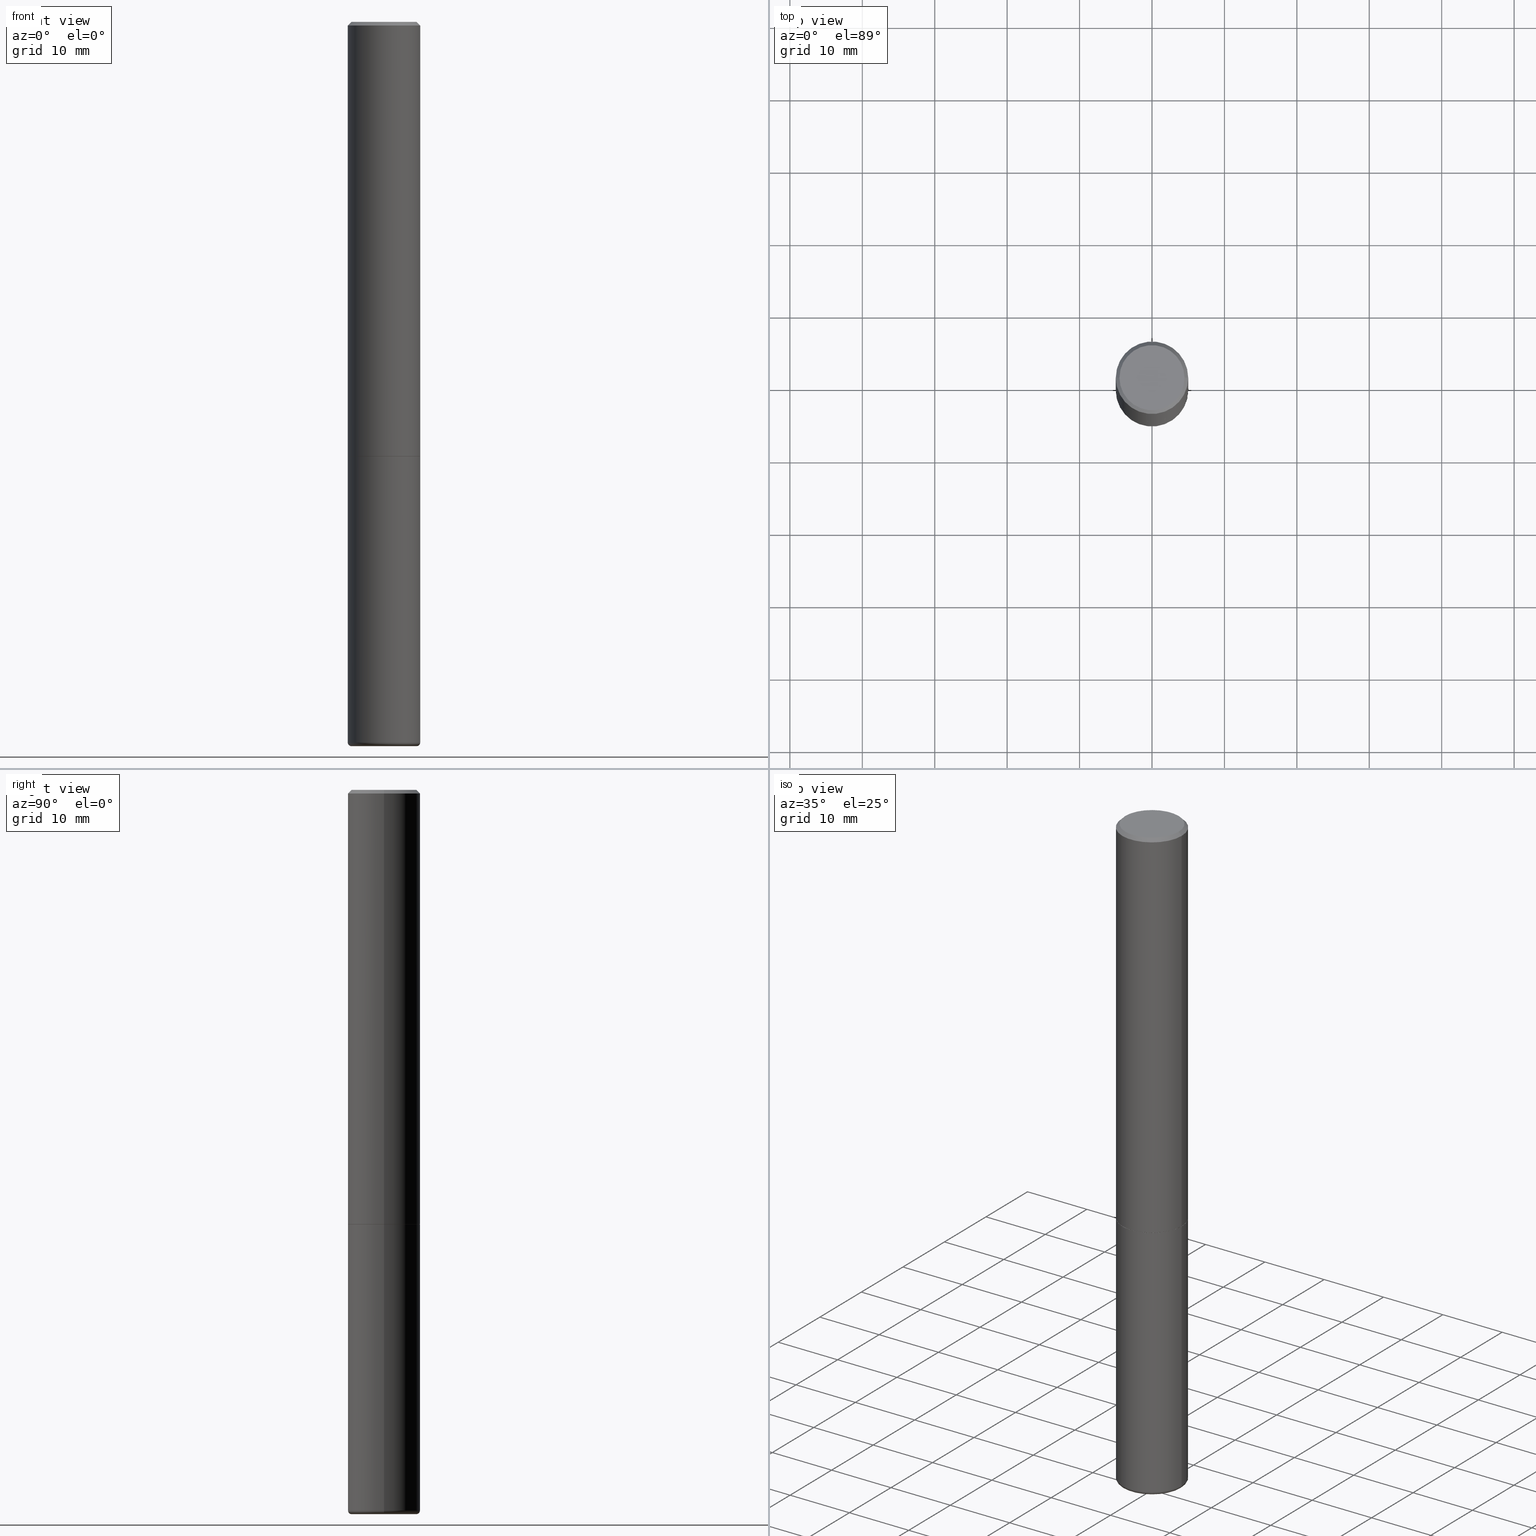
[diagram: canonical four-view strip — front | top / right | iso, engineering-drawing reading convention]
A machine part, canonical four-view strip (front | top / right | iso — engineering-drawing reading convention). The complete STEP part file that produces these views, byte-faithful:
ISO-10303-21;
HEADER;
FILE_DESCRIPTION (( 'STEP AP203' ),
    '1' );
FILE_NAME ('74424.STEP',
    '2024-03-06T15:12:57',
    ( '' ),
    ( '' ),
    'SwSTEP 2.0',
    'SolidWorks 2023',
    '' );
FILE_SCHEMA (( 'CONFIG_CONTROL_DESIGN' ));
ENDSEC;

DATA;
#1 = ADVANCED_FACE ( 'NONE', ( #188 ), #218, .T. ) ;
#2 = ORIENTED_EDGE ( 'NONE', *, *, #209, .T. ) ;
#3 = APPROVAL_DATE_TIME ( #37, #187 ) ;
#4 = ORIENTED_EDGE ( 'NONE', *, *, #355, .F. ) ;
#5 = CALENDAR_DATE ( 2024, 6, 3 ) ;
#6 = CC_DESIGN_APPROVAL ( #264, ( #50 ) ) ;
#7 = CARTESIAN_POINT ( 'NONE',  ( 4.890937612370283668E-31, -6.982962677686305168E-17, -0.02000000000000004205 ) ) ;
#8 = PERSON_AND_ORGANIZATION ( #388, #212 ) ;
#9 = DIRECTION ( 'NONE',  ( -0.7071067811865462405, 2.468850131082243650E-15, -0.7071067811865486830 ) ) ;
#10 = DIRECTION ( 'NONE',  ( 1.000000000000000000, -6.982962677686266711E-15, 4.876176775795935793E-29 ) ) ;
#11 = DIRECTION ( 'NONE',  ( 1.000000000000000000, -6.982962677686268288E-15, 0.000000000000000000 ) ) ;
#12 = DIRECTION ( 'NONE',  ( 1.000000000000000000, -6.982962677686266711E-15, 4.876176775795935793E-29 ) ) ;
#13 = AXIS2_PLACEMENT_3D ( 'NONE', #405, #48, #102 ) ;
#14 = CC_DESIGN_PERSON_AND_ORGANIZATION_ASSIGNMENT ( #185, #322, ( #310 ) ) ;
#15 = DIRECTION ( 'NONE',  ( 1.000000000000000000, -6.982962677686268288E-15, 0.000000000000000000 ) ) ;
#16 = CARTESIAN_POINT ( 'NONE',  ( 9.579634954469036932E-29, -1.367717984865025539E-14, -3.917300000000000448 ) ) ;
#17 = AXIS2_PLACEMENT_3D ( 'NONE', #104, #303, #12 ) ;
#18 = EDGE_LOOP ( 'NONE', ( #289, #384 ) ) ;
#19 = DIRECTION ( 'NONE',  ( 1.000000000000000000, -6.982962677686270655E-15, 0.000000000000000000 ) ) ;
#20 = CIRCLE ( 'NONE', #70, 0.1968500000000000527 ) ;
#21 = EDGE_LOOP ( 'NONE', ( #52, #375, #279, #351 ) ) ;
#22 = UNCERTAINTY_MEASURE_WITH_UNIT (LENGTH_MEASURE( 1.000000000000000082E-05 ), #414, 'distance_accuracy_value', 'NONE');
#23 = EDGE_CURVE ( 'NONE', #383, #181, #86, .T. ) ;
#24 = FACE_OUTER_BOUND ( 'NONE', #154, .T. ) ;
#25 = DIRECTION ( 'NONE',  ( 0.000000000000000000, 0.000000000000000000, 1.000000000000000000 ) ) ;
#26 = DIRECTION ( 'NONE',  ( 1.000000000000000000, -6.982962677686266711E-15, 4.870572768024644056E-29 ) ) ;
#27 = APPLICATION_PROTOCOL_DEFINITION ( 'international standard', 'config_control_design', 1994, #261 ) ;
#28 = ORIENTED_EDGE ( 'NONE', *, *, #53, .F. ) ;
#29 = CIRCLE ( 'NONE', #34, 0.01969999999999989468 ) ;
#30 = PRODUCT_DEFINITION_FORMATION_WITH_SPECIFIED_SOURCE ( 'ANY', '', #310, .NOT_KNOWN. ) ;
#31 = ORIENTED_EDGE ( 'NONE', *, *, #311, .T. ) ;
#32 = CARTESIAN_POINT ( 'NONE',  ( 9.579634954469036932E-29, -1.367717984865025539E-14, -3.917300000000000448 ) ) ;
#33 = DIRECTION ( 'NONE',  ( 1.000000000000000000, -6.982962677686265922E-15, 4.876176775795935793E-29 ) ) ;
#34 = AXIS2_PLACEMENT_3D ( 'NONE', #159, #40, #397 ) ;
#35 = LINE ( 'NONE', #298, #395 ) ;
#36 = CARTESIAN_POINT ( 'NONE',  ( -0.1768499999999998407, 1.269851762937247450E-15, 2.219626494852126227E-16 ) ) ;
#37 = DATE_AND_TIME ( #120, #362 ) ;
#38 = DIRECTION ( 'NONE',  ( -2.445468806185136877E-29, 3.491481338843145188E-15, 1.000000000000000000 ) ) ;
#39 = DIRECTION ( 'NONE',  ( 1.000000000000000000, -6.982962677686266711E-15, 0.000000000000000000 ) ) ;
#40 = DIRECTION ( 'NONE',  ( -6.982962677686266711E-15, -1.000000000000000000, 3.491481338843145583E-15 ) ) ;
#41 = DIRECTION ( 'NONE',  ( -2.445468806185136597E-29, 3.491481338843145583E-15, 1.000000000000000000 ) ) ;
#42 = CONICAL_SURFACE ( 'NONE', #295, 0.1968500000000000527, 0.7853981633974466137 ) ;
#43 = DIRECTION ( 'NONE',  ( 0.7071067811865462405, -7.319954787623251312E-15, -0.7071067811865486830 ) ) ;
#44 = CARTESIAN_POINT ( 'NONE',  ( -0.1968499999999999417, -1.227847647330649996E-14, -3.917300000000000448 ) ) ;
#45 = VERTEX_POINT ( 'NONE', #228 ) ;
#46 = TOROIDAL_SURFACE ( 'NONE', #146, 0.1771500000000000019, 0.01969999999999987733 ) ;
#47 = ORIENTED_EDGE ( 'NONE', *, *, #23, .F. ) ;
#48 = DIRECTION ( 'NONE',  ( 2.438088387897960049E-29, -3.491481338843145188E-15, -1.000000000000000000 ) ) ;
#49 = ORIENTED_EDGE ( 'NONE', *, *, #313, .F. ) ;
#50 = PRODUCT_DEFINITION ( 'UNKNOWN', '', #30, #400 ) ;
#51 = MANIFOLD_SOLID_BREP ( 'Body-Move/Copy2[1]', #394 ) ;
#52 = ORIENTED_EDGE ( 'NONE', *, *, #94, .F. ) ;
#53 = EDGE_CURVE ( 'NONE', #356, #417, #270, .T. ) ;
#54 = AXIS2_PLACEMENT_3D ( 'NONE', #68, #363, #15 ) ;
#55 = ORIENTED_EDGE ( 'NONE', *, *, #399, .T. ) ;
#56 = CARTESIAN_POINT ( 'NONE',  ( -5.428027354543142984E-45, 7.749784485978325769E-31, 2.219626494852213988E-16 ) ) ;
#57 = DIRECTION ( 'NONE',  ( 1.000000000000000000, 0.000000000000000000, 0.000000000000000000 ) ) ;
#58 = ORIENTED_EDGE ( 'NONE', *, *, #89, .T. ) ;
#59 = EDGE_CURVE ( 'NONE', #117, #230, #314, .T. ) ;
#60 = ORIENTED_EDGE ( 'NONE', *, *, #245, .F. ) ;
#61 = PERSON_AND_ORGANIZATION ( #388, #212 ) ;
#62 = CARTESIAN_POINT ( 'NONE',  ( 5.776686413970529753E-29, -8.247577218615278049E-15, -2.362199999999999633 ) ) ;
#63 = EDGE_LOOP ( 'NONE', ( #282, #349, #257, #76 ) ) ;
#64 = COORDINATED_UNIVERSAL_TIME_OFFSET ( 5, 0, .BEHIND. ) ;
#65 = CARTESIAN_POINT ( 'NONE',  ( 0.1968500000000000527, -1.420318657638189516E-15, -0.02000000000000004205 ) ) ;
#66 = DIRECTION ( 'NONE',  ( -2.445468806185136597E-29, 3.491481338843145583E-15, 1.000000000000000000 ) ) ;
#67 = DIRECTION ( 'NONE',  ( 1.000000000000000000, -6.982962677686262766E-15, 0.000000000000000000 ) ) ;
#68 = CARTESIAN_POINT ( 'NONE',  ( 5.776686413970529753E-29, -8.247577218615278049E-15, -2.362199999999999633 ) ) ;
#69 = APPROVAL_STATUS ( 'not_yet_approved' ) ;
#70 = AXIS2_PLACEMENT_3D ( 'NONE', #7, #204, #386 ) ;
#71 = LINE ( 'NONE', #353, #186 ) ;
#72 = FACE_OUTER_BOUND ( 'NONE', #121, .T. ) ;
#73 = CARTESIAN_POINT ( 'NONE',  ( 0.1968500000000000527, -1.420318657638189516E-15, -0.02000000000000004205 ) ) ;
#74 = DIRECTION ( 'NONE',  ( -2.445468806185136597E-29, 3.491481338843145583E-15, 1.000000000000000000 ) ) ;
#75 = DIRECTION ( 'NONE',  ( -1.000000000000000000, 6.982962677686265922E-15, -4.876176775795935793E-29 ) ) ;
#76 = ORIENTED_EDGE ( 'NONE', *, *, #213, .T. ) ;
#77 = FACE_OUTER_BOUND ( 'NONE', #413, .T. ) ;
#78 = CARTESIAN_POINT ( 'NONE',  ( 5.776686413970529753E-29, -8.247577218615278049E-15, -2.362199999999999633 ) ) ;
#79 = CARTESIAN_POINT ( 'NONE',  ( 9.627810689950883669E-29, -1.374596203102546341E-14, -3.937000000000000277 ) ) ;
#80 = EDGE_LOOP ( 'NONE', ( #249, #224, #119, #325 ) ) ;
#81 = AXIS2_PLACEMENT_3D ( 'NONE', #56, #189, #26 ) ;
#82 = AXIS2_PLACEMENT_3D ( 'NONE', #16, #168, #208 ) ;
#83 = CC_DESIGN_PERSON_AND_ORGANIZATION_ASSIGNMENT ( #288, #330, ( #30 ) ) ;
#84 = ADVANCED_FACE ( 'NONE', ( #24 ), #411, .T. ) ;
#85 = DIRECTION ( 'NONE',  ( 1.000000000000000000, -6.982962677686269866E-15, 0.000000000000000000 ) ) ;
#86 = CIRCLE ( 'NONE', #163, 0.1771500000000000574 ) ;
#87 = CIRCLE ( 'NONE', #415, 0.1958499999999999963 ) ;
#88 = DIRECTION ( 'NONE',  ( 1.000000000000000000, -6.982962677686266711E-15, 4.876176775795935793E-29 ) ) ;
#89 = EDGE_CURVE ( 'NONE', #230, #117, #401, .T. ) ;
#90 = DIRECTION ( 'NONE',  ( -1.000000000000000000, 6.982962677686266711E-15, 0.000000000000000000 ) ) ;
#91 = DIRECTION ( 'NONE',  ( -2.445468806185136597E-29, 3.491481338843145583E-15, 1.000000000000000000 ) ) ;
#92 = ORIENTED_EDGE ( 'NONE', *, *, #370, .F. ) ;
#93 = AXIS2_PLACEMENT_3D ( 'NONE', #412, #25, #57 ) ;
#94 = EDGE_CURVE ( 'NONE', #181, #417, #277, .T. ) ;
#95 = FACE_OUTER_BOUND ( 'NONE', #111, .T. ) ;
#96 = PERSON_AND_ORGANIZATION ( #388, #212 ) ;
#97 = CARTESIAN_POINT ( 'NONE',  ( 0.1768499999999998407, -1.316798864272041549E-15, 2.219626494852302982E-16 ) ) ;
#98 = DATE_AND_TIME ( #390, #243 ) ;
#99 = CARTESIAN_POINT ( 'NONE',  ( 5.776686413970529753E-29, -8.247577218615278049E-15, -2.362199999999999633 ) ) ;
#100 = LINE ( 'NONE', #327, #155 ) ;
#101 = CARTESIAN_POINT ( 'NONE',  ( 4.890937612370283668E-31, -6.982962677686305168E-17, -0.02000000000000004205 ) ) ;
#102 = DIRECTION ( 'NONE',  ( -1.000000000000000000, 6.982962677686265922E-15, -4.876176775795935793E-29 ) ) ;
#103 = ADVANCED_FACE ( 'NONE', ( #396 ), #240, .F. ) ;
#104 = CARTESIAN_POINT ( 'NONE',  ( 0.000000000000000000, 0.000000000000000000, 0.000000000000000000 ) ) ;
#105 =( LENGTH_UNIT ( ) NAMED_UNIT ( * ) SI_UNIT ( $, .METRE. ) );
#106 = CIRCLE ( 'NONE', #278, 0.1968499999999999694 ) ;
#107 = PRODUCT_RELATED_PRODUCT_CATEGORY ( 'detail', '', ( #310 ) ) ;
#108 = DIRECTION ( 'NONE',  ( -2.445468806185136877E-29, 3.491481338843145188E-15, 1.000000000000000000 ) ) ;
#109 = FACE_OUTER_BOUND ( 'NONE', #280, .T. ) ;
#110 = ADVANCED_FACE ( 'NONE', ( #365 ), #234, .T. ) ;
#111 = EDGE_LOOP ( 'NONE', ( #60, #55, #157, #408 ) ) ;
#112 = AXIS2_PLACEMENT_3D ( 'NONE', #78, #215, #144 ) ;
#113 = EDGE_LOOP ( 'NONE', ( #183, #153, #312, #343 ) ) ;
#114 = ORIENTED_EDGE ( 'NONE', *, *, #399, .F. ) ;
#115 = CARTESIAN_POINT ( 'NONE',  ( 0.000000000000000000, 0.000000000000000000, 0.000000000000000000 ) ) ;
#116 = VECTOR ( 'NONE', #43, 39.37007874015748854 ) ;
#117 = VERTEX_POINT ( 'NONE', #36 ) ;
#118 = PERSON_AND_ORGANIZATION ( #388, #212 ) ;
#119 = ORIENTED_EDGE ( 'NONE', *, *, #275, .F. ) ;
#120 = CALENDAR_DATE ( 2024, 6, 3 ) ;
#121 = EDGE_LOOP ( 'NONE', ( #193, #160, #184, #114 ) ) ;
#122 = DATE_AND_TIME ( #161, #367 ) ;
#123 = CC_DESIGN_PERSON_AND_ORGANIZATION_ASSIGNMENT ( #96, #166, ( #380 ) ) ;
#124 = DIRECTION ( 'NONE',  ( -2.445468806185136597E-29, 3.491481338843145583E-15, 1.000000000000000000 ) ) ;
#125 = EDGE_CURVE ( 'NONE', #230, #350, #272, .T. ) ;
#126 = VECTOR ( 'NONE', #238, 39.37007874015748143 ) ;
#127 = EDGE_LOOP ( 'NONE', ( #156, #152 ) ) ;
#128 = APPROVAL_ROLE ( '' ) ;
#129 =( GEOMETRIC_REPRESENTATION_CONTEXT ( 3 ) GLOBAL_UNCERTAINTY_ASSIGNED_CONTEXT ( ( #22 ) ) GLOBAL_UNIT_ASSIGNED_CONTEXT ( ( #414, #225, #222 ) ) REPRESENTATION_CONTEXT ( 'NONE', 'WORKASPACE' ) );
#130 = ADVANCED_FACE ( 'NONE', ( #176 ), #203, .T. ) ;
#131 = CC_DESIGN_APPROVAL ( #210, ( #30 ) ) ;
#132 = FACE_OUTER_BOUND ( 'NONE', #21, .T. ) ;
#133 = CARTESIAN_POINT ( 'NONE',  ( 0.000000000000000000, 0.000000000000000000, 0.000000000000000000 ) ) ;
#134 = CARTESIAN_POINT ( 'NONE',  ( 9.627810689950883669E-29, -1.374596203102546341E-14, -3.937000000000000277 ) ) ;
#135 = CARTESIAN_POINT ( 'NONE',  ( 0.1968500000000000250, -9.622173421717819657E-15, -2.362199999999999633 ) ) ;
#136 = APPLICATION_CONTEXT ( 'configuration controlled 3d designs of mechanical parts and assemblies' ) ;
#137 = DIRECTION ( 'NONE',  ( -2.445468806185136597E-29, 3.491481338843145583E-15, 1.000000000000000000 ) ) ;
#138 = DIRECTION ( 'NONE',  ( -1.000000000000000000, 6.982962677686265922E-15, -4.876176775795935793E-29 ) ) ;
#139 = AXIS2_PLACEMENT_3D ( 'NONE', #207, #172, #141 ) ;
#140 = AXIS2_PLACEMENT_3D ( 'NONE', #342, #308, #262 ) ;
#141 = DIRECTION ( 'NONE',  ( -1.000000000000000000, 7.105427357600965571E-15, 0.000000000000000000 ) ) ;
#142 = CARTESIAN_POINT ( 'NONE',  ( 0.1771500000000000574, -1.498299386937758739E-14, -3.937000000000000277 ) ) ;
#143 = ADVANCED_FACE ( 'NONE', ( #72 ), #247, .T. ) ;
#144 = DIRECTION ( 'NONE',  ( 1.000000000000000000, -6.982962677686268288E-15, 0.000000000000000000 ) ) ;
#145 = AXIS2_PLACEMENT_3D ( 'NONE', #32, #292, #85 ) ;
#146 = AXIS2_PLACEMENT_3D ( 'NONE', #167, #137, #231 ) ;
#147 = ORIENTED_EDGE ( 'NONE', *, *, #209, .F. ) ;
#148 = ADVANCED_FACE ( 'NONE', ( #360 ), #151, .T. ) ;
#149 = VERTEX_POINT ( 'NONE', #135 ) ;
#150 = APPLICATION_PROTOCOL_DEFINITION ( 'international standard', 'config_control_design', 1994, #136 ) ;
#151 = CONICAL_SURFACE ( 'NONE', #174, 0.1958499999999999963, 0.7853981633975507526 ) ;
#152 = ORIENTED_EDGE ( 'NONE', *, *, #313, .T. ) ;
#153 = ORIENTED_EDGE ( 'NONE', *, *, #125, .T. ) ;
#154 = EDGE_LOOP ( 'NONE', ( #2, #347, #406, #4 ) ) ;
#155 = VECTOR ( 'NONE', #358, 39.37007874015748143 ) ;
#156 = ORIENTED_EDGE ( 'NONE', *, *, #275, .T. ) ;
#157 = ORIENTED_EDGE ( 'NONE', *, *, #355, .T. ) ;
#158 = COORDINATED_UNIVERSAL_TIME_OFFSET ( 5, 0, .BEHIND. ) ;
#159 = CARTESIAN_POINT ( 'NONE',  ( 0.1771500000000000019, -1.491421168700237936E-14, -3.917300000000000448 ) ) ;
#160 = ORIENTED_EDGE ( 'NONE', *, *, #250, .T. ) ;
#161 = CALENDAR_DATE ( 2024, 6, 3 ) ;
#162 = CARTESIAN_POINT ( 'NONE',  ( -0.1958499999999999963, -6.855979270629121269E-15, -2.362199999999999633 ) ) ;
#163 = AXIS2_PLACEMENT_3D ( 'NONE', #227, #91, #329 ) ;
#164 = AXIS2_PLACEMENT_3D ( 'NONE', #133, #265, #389 ) ;
#165 = DIRECTION ( 'NONE',  ( -2.445468806185136597E-29, 3.491481338843145583E-15, 1.000000000000000000 ) ) ;
#166 = PERSON_AND_ORGANIZATION_ROLE ( 'classification_officer' ) ;
#167 = CARTESIAN_POINT ( 'NONE',  ( 9.579634954469036932E-29, -1.367717984865025539E-14, -3.917300000000000448 ) ) ;
#168 = DIRECTION ( 'NONE',  ( -2.445468806185136597E-29, 3.491481338843145583E-15, 1.000000000000000000 ) ) ;
#169 = EDGE_CURVE ( 'NONE', #350, #252, #237, .T. ) ;
#170 = CARTESIAN_POINT ( 'NONE',  ( -0.1968499999999999694, 1.398703375343756999E-15, -9.682923725166782276E-30 ) ) ;
#171 = LINE ( 'NONE', #162, #223 ) ;
#172 = DIRECTION ( 'NONE',  ( 7.105427357601001859E-15, 1.000000000000000000, -3.491481338843145583E-15 ) ) ;
#173 = CLOSED_SHELL ( 'NONE', ( #148, #84, #1, #177, #226, #143, #283, #409 ) ) ;
#174 = AXIS2_PLACEMENT_3D ( 'NONE', #99, #165, #341 ) ;
#175 = CC_DESIGN_DATE_AND_TIME_ASSIGNMENT ( #361, #301, ( #380 ) ) ;
#176 = FACE_OUTER_BOUND ( 'NONE', #377, .T. ) ;
#177 = ADVANCED_FACE ( 'NONE', ( #200 ), #42, .T. ) ;
#178 = CARTESIAN_POINT ( 'NONE',  ( 5.774240945164344150E-29, -8.244085737276433464E-15, -2.361199999999999743 ) ) ;
#179 = VECTOR ( 'NONE', #108, 39.37007874015748143 ) ;
#180 = APPROVAL_PERSON_ORGANIZATION ( #297, #210, #357 ) ;
#181 = VERTEX_POINT ( 'NONE', #306 ) ;
#182 = EDGE_CURVE ( 'NONE', #417, #315, #300, .T. ) ;
#183 = ORIENTED_EDGE ( 'NONE', *, *, #89, .F. ) ;
#184 = ORIENTED_EDGE ( 'NONE', *, *, #328, .T. ) ;
#185 = PERSON_AND_ORGANIZATION ( #388, #212 ) ;
#186 = VECTOR ( 'NONE', #38, 39.37007874015748143 ) ;
#187 = APPROVAL ( #69, 'UNSPECIFIED' ) ;
#188 = FACE_OUTER_BOUND ( 'NONE', #113, .T. ) ;
#189 = DIRECTION ( 'NONE',  ( -2.445468806185136597E-29, 3.491481338843145583E-15, 1.000000000000000000 ) ) ;
#190 = VERTEX_POINT ( 'NONE', #338 ) ;
#191 = AXIS2_PLACEMENT_3D ( 'NONE', #178, #276, #372 ) ;
#192 = LOCAL_TIME ( 10, 12, 57.00000000000000000, #268 ) ;
#193 = ORIENTED_EDGE ( 'NONE', *, *, #281, .F. ) ;
#194 = DATE_TIME_ROLE ( 'creation_date' ) ;
#195 = ADVANCED_FACE ( 'NONE', ( #274 ), #398, .T. ) ;
#196 = EDGE_CURVE ( 'NONE', #417, #356, #106, .T. ) ;
#197 = DIRECTION ( 'NONE',  ( 2.445468806185136597E-29, -3.491481338843145583E-15, -1.000000000000000000 ) ) ;
#198 = APPROVAL_DATE_TIME ( #326, #210 ) ;
#199 = DIRECTION ( 'NONE',  ( 0.7071067811866199593, -2.468850131083015945E-15, 0.7071067811864750752 ) ) ;
#200 = FACE_OUTER_BOUND ( 'NONE', #63, .T. ) ;
#201 = MANIFOLD_SOLID_BREP ( 'Body-Move/Copy2[2]', #173 ) ;
#202 = AXIS2_PLACEMENT_3D ( 'NONE', #232, #364, #138 ) ;
#203 = TOROIDAL_SURFACE ( 'NONE', #82, 0.1771500000000000019, 0.01969999999999987733 ) ;
#204 = DIRECTION ( 'NONE',  ( -2.445468806185136597E-29, 3.491481338843145583E-15, 1.000000000000000000 ) ) ;
#205 = CC_DESIGN_APPROVAL ( #187, ( #380 ) ) ;
#206 = FACE_OUTER_BOUND ( 'NONE', #18, .T. ) ;
#207 = CARTESIAN_POINT ( 'NONE',  ( -0.1771500000000000019, -1.241845339225123848E-14, -3.917300000000000448 ) ) ;
#208 = DIRECTION ( 'NONE',  ( 1.000000000000000000, -6.982962677686261977E-15, 4.883557194083110659E-29 ) ) ;
#209 = EDGE_CURVE ( 'NONE', #190, #45, #348, .T. ) ;
#210 = APPROVAL ( #293, 'UNSPECIFIED' ) ;
#211 = DIRECTION ( 'NONE',  ( 1.000000000000000000, -6.982962677686269866E-15, 0.000000000000000000 ) ) ;
#212 = ORGANIZATION ( 'UNSPECIFIED', 'UNSPECIFIED', '' ) ;
#213 = EDGE_CURVE ( 'NONE', #252, #350, #20, .T. ) ;
#214 = EDGE_LOOP ( 'NONE', ( #217, #323, #147, #285 ) ) ;
#215 = DIRECTION ( 'NONE',  ( -2.445468806185136597E-29, 3.491481338843145583E-15, 1.000000000000000000 ) ) ;
#216 = DIRECTION ( 'NONE',  ( 2.438088387897960049E-29, -3.491481338843145188E-15, -1.000000000000000000 ) ) ;
#217 = ORIENTED_EDGE ( 'NONE', *, *, #307, .T. ) ;
#218 = CONICAL_SURFACE ( 'NONE', #259, 0.1968500000000000527, 0.7853981633974466137 ) ;
#219 = CIRCLE ( 'NONE', #373, 0.1771500000000000574 ) ;
#220 = CC_DESIGN_PERSON_AND_ORGANIZATION_ASSIGNMENT ( #229, #352, ( #50 ) ) ;
#221 = DIRECTION ( 'NONE',  ( 1.000000000000000000, -6.982962677686266711E-15, 4.870572768024644056E-29 ) ) ;
#222 =( NAMED_UNIT ( * ) SI_UNIT ( $, .STERADIAN. ) SOLID_ANGLE_UNIT ( ) );
#223 = VECTOR ( 'NONE', #291, 39.37007874015748143 ) ;
#224 = ORIENTED_EDGE ( 'NONE', *, *, #182, .T. ) ;
#225 =( NAMED_UNIT ( * ) PLANE_ANGLE_UNIT ( ) SI_UNIT ( $, .RADIAN. ) );
#226 = ADVANCED_FACE ( 'NONE', ( #95 ), #332, .T. ) ;
#227 = CARTESIAN_POINT ( 'NONE',  ( 9.627810689950883669E-29, -1.374596203102546341E-14, -3.937000000000000277 ) ) ;
#228 = CARTESIAN_POINT ( 'NONE',  ( -0.1968500000000002748, -2.758254306682887043E-15, -2.361199999999999743 ) ) ;
#229 = PERSON_AND_ORGANIZATION ( #388, #212 ) ;
#230 = VERTEX_POINT ( 'NONE', #97 ) ;
#231 = DIRECTION ( 'NONE',  ( 1.000000000000000000, -6.982962677686261977E-15, 4.883557194083110659E-29 ) ) ;
#232 = CARTESIAN_POINT ( 'NONE',  ( 5.776686413970529753E-29, -8.247577218615278049E-15, -2.362199999999999633 ) ) ;
#233 = PLANE ( 'NONE',  #345 ) ;
#234 = CYLINDRICAL_SURFACE ( 'NONE', #305, 0.1968499999999999694 ) ;
#235 = PERSON_AND_ORGANIZATION_ROLE ( 'design_supplier' ) ;
#236 = AXIS2_PLACEMENT_3D ( 'NONE', #115, #251, #88 ) ;
#237 = CIRCLE ( 'NONE', #260, 0.1968500000000000527 ) ;
#238 = DIRECTION ( 'NONE',  ( -2.445468806185136877E-29, 3.491481338843145188E-15, 1.000000000000000000 ) ) ;
#239 = DIRECTION ( 'NONE',  ( -2.438088387897960049E-29, 3.491481338843145188E-15, 1.000000000000000000 ) ) ;
#240 = PLANE ( 'NONE',  #202 ) ;
#241 = CARTESIAN_POINT ( 'NONE',  ( 9.579634954469036932E-29, -1.367717984865025539E-14, -3.917300000000000448 ) ) ;
#242 = AXIS2_PLACEMENT_3D ( 'NONE', #284, #320, #221 ) ;
#243 = LOCAL_TIME ( 10, 12, 57.00000000000000000, #255 ) ;
#244 = PLANE ( 'NONE',  #13 ) ;
#245 = EDGE_CURVE ( 'NONE', #45, #252, #336, .T. ) ;
#246 = ORIENTED_EDGE ( 'NONE', *, *, #196, .T. ) ;
#247 = CONICAL_SURFACE ( 'NONE', #54, 0.1958499999999999963, 0.7853981633975507526 ) ;
#248 = CC_DESIGN_SECURITY_CLASSIFICATION ( #380, ( #30 ) ) ;
#249 = ORIENTED_EDGE ( 'NONE', *, *, #53, .T. ) ;
#250 = EDGE_CURVE ( 'NONE', #287, #254, #309, .T. ) ;
#251 = DIRECTION ( 'NONE',  ( -2.445468806185136597E-29, 3.491481338843145583E-15, 1.000000000000000000 ) ) ;
#252 = VERTEX_POINT ( 'NONE', #403 ) ;
#253 = APPROVAL_STATUS ( 'not_yet_approved' ) ;
#254 = VERTEX_POINT ( 'NONE', #344 ) ;
#255 = COORDINATED_UNIVERSAL_TIME_OFFSET ( 5, 0, .BEHIND. ) ;
#256 = ADVANCED_FACE ( 'NONE', ( #109 ), #371, .T. ) ;
#257 = ORIENTED_EDGE ( 'NONE', *, *, #369, .T. ) ;
#258 = CARTESIAN_POINT ( 'NONE',  ( -0.1968500000000000250, -9.563675158289009718E-15, -2.362199999999999633 ) ) ;
#259 = AXIS2_PLACEMENT_3D ( 'NONE', #381, #197, #90 ) ;
#260 = AXIS2_PLACEMENT_3D ( 'NONE', #296, #41, #39 ) ;
#261 = APPLICATION_CONTEXT ( 'configuration controlled 3d designs of mechanical parts and assemblies' ) ;
#262 = DIRECTION ( 'NONE',  ( 1.000000000000000000, -6.982962677686269077E-15, 0.000000000000000000 ) ) ;
#263 = SHAPE_DEFINITION_REPRESENTATION ( #304, #324 ) ;
#264 = APPROVAL ( #253, 'UNSPECIFIED' ) ;
#265 = DIRECTION ( 'NONE',  ( -2.445468806185136597E-29, 3.491481338843145583E-15, 1.000000000000000000 ) ) ;
#266 = CARTESIAN_POINT ( 'NONE',  ( -0.1958499999999999963, -6.850680816280898078E-15, -2.362199999999999633 ) ) ;
#267 = DIRECTION ( 'NONE',  ( -1.000000000000000000, 6.982962677686266711E-15, 0.000000000000000000 ) ) ;
#268 = COORDINATED_UNIVERSAL_TIME_OFFSET ( 5, 0, .BEHIND. ) ;
#269 = LINE ( 'NONE', #393, #286 ) ;
#270 = CIRCLE ( 'NONE', #145, 0.1968499999999999694 ) ;
#271 = CIRCLE ( 'NONE', #191, 0.1968500000000002748 ) ;
#272 = LINE ( 'NONE', #73, #116 ) ;
#273 = CARTESIAN_POINT ( 'NONE',  ( 5.776686413970529753E-29, -8.247577218615278049E-15, -2.362199999999999633 ) ) ;
#274 = FACE_OUTER_BOUND ( 'NONE', #80, .T. ) ;
#275 = EDGE_CURVE ( 'NONE', #149, #315, #385, .T. ) ;
#276 = DIRECTION ( 'NONE',  ( -2.445468806185136597E-29, 3.491481338843145583E-15, 1.000000000000000000 ) ) ;
#277 = CIRCLE ( 'NONE', #139, 0.01969999999999989468 ) ;
#278 = AXIS2_PLACEMENT_3D ( 'NONE', #241, #74, #211 ) ;
#279 = ORIENTED_EDGE ( 'NONE', *, *, #299, .T. ) ;
#280 = EDGE_LOOP ( 'NONE', ( #47, #92 ) ) ;
#281 = EDGE_CURVE ( 'NONE', #287, #45, #171, .T. ) ;
#282 = ORIENTED_EDGE ( 'NONE', *, *, #125, .F. ) ;
#283 = ADVANCED_FACE ( 'NONE', ( #206 ), #233, .F. ) ;
#284 = CARTESIAN_POINT ( 'NONE',  ( -5.428027354543142984E-45, 7.749784485978325769E-31, 2.219626494852213988E-16 ) ) ;
#285 = ORIENTED_EDGE ( 'NONE', *, *, #328, .F. ) ;
#286 = VECTOR ( 'NONE', #199, 39.37007874015748143 ) ;
#287 = VERTEX_POINT ( 'NONE', #266 ) ;
#288 = PERSON_AND_ORGANIZATION ( #388, #212 ) ;
#289 = ORIENTED_EDGE ( 'NONE', *, *, #307, .F. ) ;
#290 = APPROVAL_DATE_TIME ( #122, #264 ) ;
#291 = DIRECTION ( 'NONE',  ( -0.7071067811866199593, 7.493145998870616062E-15, 0.7071067811864750752 ) ) ;
#292 = DIRECTION ( 'NONE',  ( -2.445468806185136597E-29, 3.491481338843145583E-15, 1.000000000000000000 ) ) ;
#293 = APPROVAL_STATUS ( 'not_yet_approved' ) ;
#294 = CARTESIAN_POINT ( 'NONE',  ( 5.776686413970529753E-29, -8.247577218615278049E-15, -2.362199999999999633 ) ) ;
#295 = AXIS2_PLACEMENT_3D ( 'NONE', #101, #392, #267 ) ;
#296 = CARTESIAN_POINT ( 'NONE',  ( 4.890937612370283668E-31, -6.982962677686305168E-17, -0.02000000000000004205 ) ) ;
#297 = PERSON_AND_ORGANIZATION ( #388, #212 ) ;
#298 = CARTESIAN_POINT ( 'NONE',  ( -0.1968500000000000527, 1.304766576325678902E-15, -0.02000000000000004205 ) ) ;
#299 = EDGE_CURVE ( 'NONE', #383, #356, #29, .T. ) ;
#300 = LINE ( 'NONE', #170, #126 ) ;
#301 = DATE_TIME_ROLE ( 'classification_date' ) ;
#302 = DIRECTION ( 'NONE',  ( -2.445468806185136597E-29, 3.491481338843145583E-15, 1.000000000000000000 ) ) ;
#303 = DIRECTION ( 'NONE',  ( -2.445468806185136597E-29, 3.491481338843145583E-15, 1.000000000000000000 ) ) ;
#304 = PRODUCT_DEFINITION_SHAPE ( 'NONE', 'NONE',  #50 ) ;
#305 = AXIS2_PLACEMENT_3D ( 'NONE', #359, #66, #10 ) ;
#306 = CARTESIAN_POINT ( 'NONE',  ( -0.1771500000000000574, -1.238285602396647324E-14, -3.937000000000000277 ) ) ;
#307 = EDGE_CURVE ( 'NONE', #254, #287, #87, .T. ) ;
#308 = DIRECTION ( 'NONE',  ( -2.445468806185136597E-29, 3.491481338843145583E-15, 1.000000000000000000 ) ) ;
#309 = CIRCLE ( 'NONE', #112, 0.1958499999999999963 ) ;
#310 = PRODUCT ( '74424', '74424', '', ( #376 ) ) ;
#311 = EDGE_CURVE ( 'NONE', #356, #149, #71, .T. ) ;
#312 = ORIENTED_EDGE ( 'NONE', *, *, #169, .T. ) ;
#313 = EDGE_CURVE ( 'NONE', #315, #149, #318, .T. ) ;
#314 = CIRCLE ( 'NONE', #242, 0.1768499999999998407 ) ;
#315 = VERTEX_POINT ( 'NONE', #258 ) ;
#316 = APPROVAL_PERSON_ORGANIZATION ( #118, #264, #382 ) ;
#317 = ADVANCED_FACE ( 'NONE', ( #132 ), #46, .T. ) ;
#318 = CIRCLE ( 'NONE', #335, 0.1968500000000000250 ) ;
#319 = APPROVAL_PERSON_ORGANIZATION ( #8, #187, #128 ) ;
#320 = DIRECTION ( 'NONE',  ( -2.445468806185136597E-29, 3.491481338843145583E-15, 1.000000000000000000 ) ) ;
#321 = ORIENTED_EDGE ( 'NONE', *, *, #299, .F. ) ;
#322 = PERSON_AND_ORGANIZATION_ROLE ( 'design_owner' ) ;
#323 = ORIENTED_EDGE ( 'NONE', *, *, #281, .T. ) ;
#324 = ADVANCED_BREP_SHAPE_REPRESENTATION ( '74424', ( #51, #201, #93 ), #129 ) ;
#325 = ORIENTED_EDGE ( 'NONE', *, *, #311, .F. ) ;
#326 = DATE_AND_TIME ( #339, #192 ) ;
#327 = CARTESIAN_POINT ( 'NONE',  ( 0.1968500000000001915, -1.374596203102542989E-15, 9.598753983154309266E-30 ) ) ;
#328 = EDGE_CURVE ( 'NONE', #254, #190, #269, .T. ) ;
#329 = DIRECTION ( 'NONE',  ( 1.000000000000000000, -6.982962677686270655E-15, 0.000000000000000000 ) ) ;
#330 = PERSON_AND_ORGANIZATION_ROLE ( 'creator' ) ;
#331 = CARTESIAN_POINT ( 'NONE',  ( 5.776686413970529753E-29, -8.247577218615278049E-15, -2.362199999999999633 ) ) ;
#332 = CYLINDRICAL_SURFACE ( 'NONE', #164, 0.1968500000000001915 ) ;
#333 = SECURITY_CLASSIFICATION_LEVEL ( 'unclassified' ) ;
#334 = CARTESIAN_POINT ( 'NONE',  ( 0.1968499999999999417, -1.505177605175279857E-14, -3.917300000000000448 ) ) ;
#335 = AXIS2_PLACEMENT_3D ( 'NONE', #62, #302, #67 ) ;
#336 = LINE ( 'NONE', #368, #179 ) ;
#337 = DIRECTION ( 'NONE',  ( -2.445468806185136597E-29, 3.491481338843145583E-15, 1.000000000000000000 ) ) ;
#338 = CARTESIAN_POINT ( 'NONE',  ( 0.1968500000000002748, -9.618681940378978228E-15, -2.361199999999999743 ) ) ;
#339 = CALENDAR_DATE ( 2024, 6, 3 ) ;
#340 = DIMENSIONAL_EXPONENTS ( 1.000000000000000000, 0.000000000000000000, 0.000000000000000000, 0.000000000000000000, 0.000000000000000000, 0.000000000000000000, 0.000000000000000000 ) ;
#341 = DIRECTION ( 'NONE',  ( 1.000000000000000000, -6.982962677686268288E-15, 0.000000000000000000 ) ) ;
#342 = CARTESIAN_POINT ( 'NONE',  ( 5.774240945164344150E-29, -8.244085737276433464E-15, -2.361199999999999743 ) ) ;
#343 = ORIENTED_EDGE ( 'NONE', *, *, #369, .F. ) ;
#344 = CARTESIAN_POINT ( 'NONE',  ( 0.1958499999999999963, -9.615190459040133643E-15, -2.362199999999999633 ) ) ;
#345 = AXIS2_PLACEMENT_3D ( 'NONE', #294, #239, #33 ) ;
#346 = EDGE_LOOP ( 'NONE', ( #404, #246, #31, #49 ) ) ;
#347 = ORIENTED_EDGE ( 'NONE', *, *, #245, .T. ) ;
#348 = CIRCLE ( 'NONE', #140, 0.1968500000000002748 ) ;
#349 = ORIENTED_EDGE ( 'NONE', *, *, #59, .F. ) ;
#350 = VERTEX_POINT ( 'NONE', #65 ) ;
#351 = ORIENTED_EDGE ( 'NONE', *, *, #196, .F. ) ;
#352 = PERSON_AND_ORGANIZATION_ROLE ( 'creator' ) ;
#353 = CARTESIAN_POINT ( 'NONE',  ( 0.1968499999999999694, -1.374596203102541411E-15, 9.598753983154298056E-30 ) ) ;
#354 = CC_DESIGN_PERSON_AND_ORGANIZATION_ASSIGNMENT ( #61, #235, ( #30 ) ) ;
#355 = EDGE_CURVE ( 'NONE', #190, #350, #100, .T. ) ;
#356 = VERTEX_POINT ( 'NONE', #334 ) ;
#357 = APPROVAL_ROLE ( '' ) ;
#358 = DIRECTION ( 'NONE',  ( -2.445468806185136877E-29, 3.491481338843145188E-15, 1.000000000000000000 ) ) ;
#359 = CARTESIAN_POINT ( 'NONE',  ( 0.000000000000000000, 0.000000000000000000, 0.000000000000000000 ) ) ;
#360 = FACE_OUTER_BOUND ( 'NONE', #214, .T. ) ;
#361 = DATE_AND_TIME ( #5, #416 ) ;
#362 = LOCAL_TIME ( 10, 12, 57.00000000000000000, #158 ) ;
#363 = DIRECTION ( 'NONE',  ( -2.445468806185136597E-29, 3.491481338843145583E-15, 1.000000000000000000 ) ) ;
#364 = DIRECTION ( 'NONE',  ( 2.438088387897960049E-29, -3.491481338843145188E-15, -1.000000000000000000 ) ) ;
#365 = FACE_OUTER_BOUND ( 'NONE', #346, .T. ) ;
#366 = LENGTH_MEASURE_WITH_UNIT ( LENGTH_MEASURE( 0.02539999999999999897 ), #105 );
#367 = LOCAL_TIME ( 10, 12, 57.00000000000000000, #64 ) ;
#368 = CARTESIAN_POINT ( 'NONE',  ( -0.1968500000000001915, 1.398703375343758577E-15, -9.682923725166790684E-30 ) ) ;
#369 = EDGE_CURVE ( 'NONE', #117, #252, #35, .T. ) ;
#370 = EDGE_CURVE ( 'NONE', #181, #383, #219, .T. ) ;
#371 = PLANE ( 'NONE',  #402 ) ;
#372 = DIRECTION ( 'NONE',  ( 1.000000000000000000, -6.982962677686269077E-15, 0.000000000000000000 ) ) ;
#373 = AXIS2_PLACEMENT_3D ( 'NONE', #134, #391, #19 ) ;
#374 = ORIENTED_EDGE ( 'NONE', *, *, #23, .T. ) ;
#375 = ORIENTED_EDGE ( 'NONE', *, *, #370, .T. ) ;
#376 = MECHANICAL_CONTEXT ( 'NONE', #136, 'mechanical' ) ;
#377 = EDGE_LOOP ( 'NONE', ( #374, #410, #28, #321 ) ) ;
#378 = CC_DESIGN_DATE_AND_TIME_ASSIGNMENT ( #98, #194, ( #50 ) ) ;
#379 = ORIENTED_EDGE ( 'NONE', *, *, #59, .T. ) ;
#380 = SECURITY_CLASSIFICATION ( '', '', #333 ) ;
#381 = CARTESIAN_POINT ( 'NONE',  ( 4.890937612370283668E-31, -6.982962677686305168E-17, -0.02000000000000004205 ) ) ;
#382 = APPROVAL_ROLE ( '' ) ;
#383 = VERTEX_POINT ( 'NONE', #142 ) ;
#384 = ORIENTED_EDGE ( 'NONE', *, *, #250, .F. ) ;
#385 = CIRCLE ( 'NONE', #407, 0.1968500000000000250 ) ;
#386 = DIRECTION ( 'NONE',  ( 1.000000000000000000, -6.982962677686266711E-15, 0.000000000000000000 ) ) ;
#387 = DIRECTION ( 'NONE',  ( 1.000000000000000000, -6.982962677686262766E-15, 0.000000000000000000 ) ) ;
#388 = PERSON ( 'UNSPECIFIED', 'UNSPECIFIED', 'UNSPECIFIED', ('UNSPECIFIED'), ('UNSPECIFIED'), ('UNSPECIFIED') ) ;
#389 = DIRECTION ( 'NONE',  ( 1.000000000000000000, -6.982962677686266711E-15, 4.876176775795935793E-29 ) ) ;
#390 = CALENDAR_DATE ( 2024, 6, 3 ) ;
#391 = DIRECTION ( 'NONE',  ( -2.445468806185136597E-29, 3.491481338843145583E-15, 1.000000000000000000 ) ) ;
#392 = DIRECTION ( 'NONE',  ( 2.445468806185136597E-29, -3.491481338843145583E-15, -1.000000000000000000 ) ) ;
#393 = CARTESIAN_POINT ( 'NONE',  ( 0.1958499999999999963, -9.615190459040133643E-15, -2.362199999999999633 ) ) ;
#394 = CLOSED_SHELL ( 'NONE', ( #195, #130, #103, #110, #317, #256 ) ) ;
#395 = VECTOR ( 'NONE', #9, 39.37007874015748854 ) ;
#396 = FACE_OUTER_BOUND ( 'NONE', #127, .T. ) ;
#397 = DIRECTION ( 'NONE',  ( 1.000000000000000000, -6.982962677686266711E-15, 0.000000000000000000 ) ) ;
#398 = CYLINDRICAL_SURFACE ( 'NONE', #17, 0.1968499999999999694 ) ;
#399 = EDGE_CURVE ( 'NONE', #45, #190, #271, .T. ) ;
#400 = DESIGN_CONTEXT ( 'detailed design', #261, 'design' ) ;
#401 = CIRCLE ( 'NONE', #81, 0.1768499999999998407 ) ;
#402 = AXIS2_PLACEMENT_3D ( 'NONE', #79, #216, #75 ) ;
#403 = CARTESIAN_POINT ( 'NONE',  ( -0.1968500000000000527, 1.304766576325678902E-15, -0.02000000000000004205 ) ) ;
#404 = ORIENTED_EDGE ( 'NONE', *, *, #182, .F. ) ;
#405 = CARTESIAN_POINT ( 'NONE',  ( 1.234936949548815012E-15, 0.1768499999999998407, -5.064871500317991731E-16 ) ) ;
#406 = ORIENTED_EDGE ( 'NONE', *, *, #169, .F. ) ;
#407 = AXIS2_PLACEMENT_3D ( 'NONE', #273, #337, #387 ) ;
#408 = ORIENTED_EDGE ( 'NONE', *, *, #213, .F. ) ;
#409 = ADVANCED_FACE ( 'NONE', ( #77 ), #244, .F. ) ;
#410 = ORIENTED_EDGE ( 'NONE', *, *, #94, .T. ) ;
#411 = CYLINDRICAL_SURFACE ( 'NONE', #236, 0.1968500000000001915 ) ;
#412 = CARTESIAN_POINT ( 'NONE',  ( 0.000000000000000000, 0.000000000000000000, 0.000000000000000000 ) ) ;
#413 = EDGE_LOOP ( 'NONE', ( #379, #58 ) ) ;
#414 =( CONVERSION_BASED_UNIT ( 'INCH', #366 ) LENGTH_UNIT ( ) NAMED_UNIT ( #340 ) );
#415 = AXIS2_PLACEMENT_3D ( 'NONE', #331, #124, #11 ) ;
#416 = LOCAL_TIME ( 10, 12, 57.00000000000000000, #418 ) ;
#417 = VERTEX_POINT ( 'NONE', #44 ) ;
#418 = COORDINATED_UNIVERSAL_TIME_OFFSET ( 5, 0, .BEHIND. ) ;
ENDSEC;
END-ISO-10303-21;
